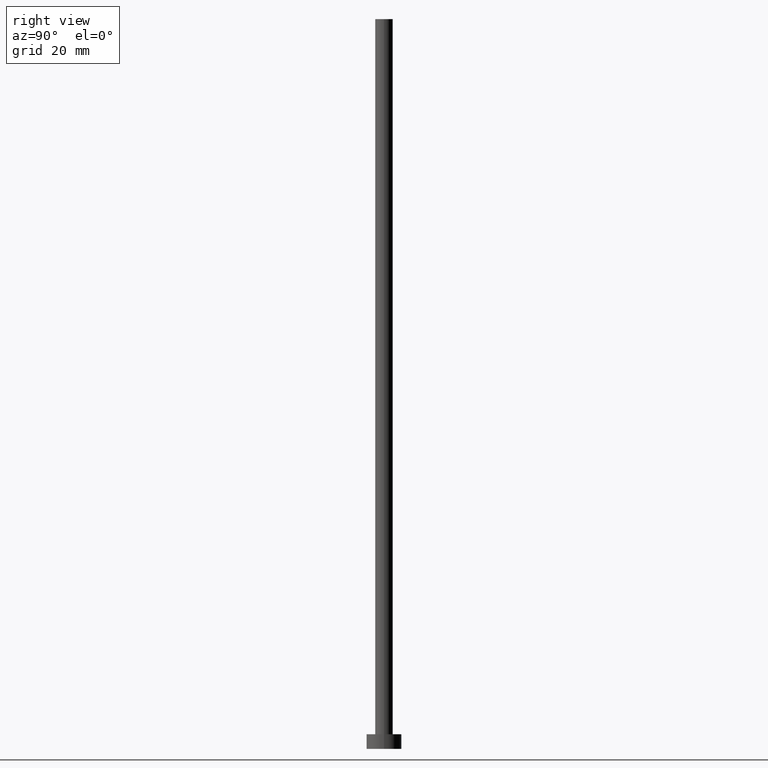
[diagram: clean part render]
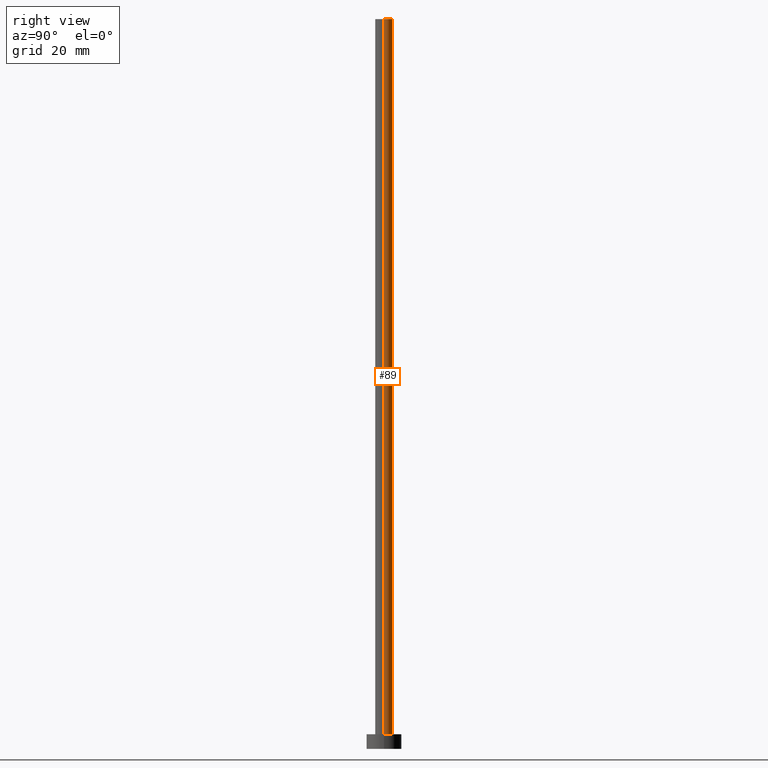
[diagram: same view with one face highlighted and labeled with its STEP entity id]
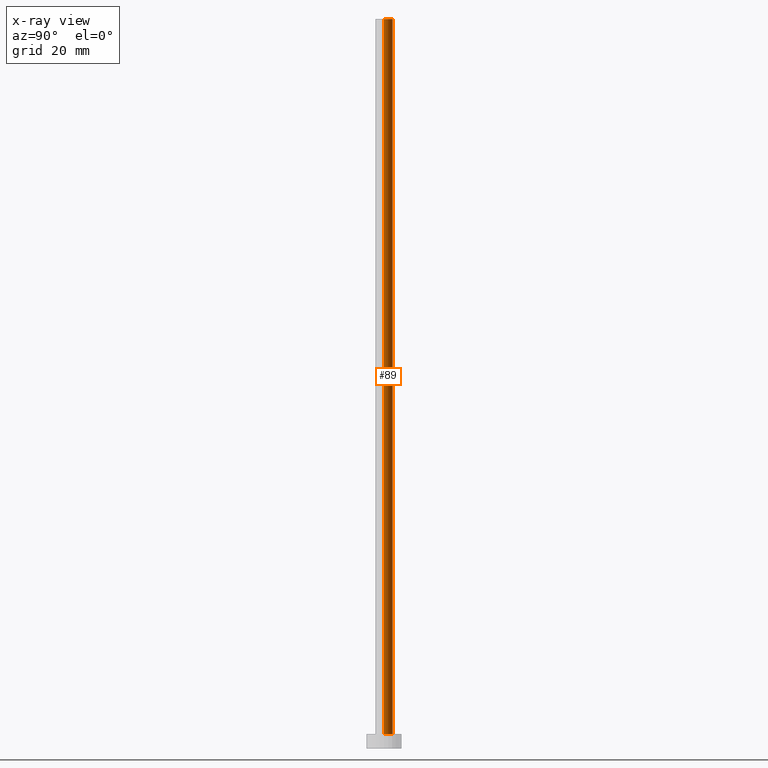
[diagram: x-ray of the same camera — body ghosted, the highlighted face saturated]
A machine part, right view. The second image highlights one B-rep face of the part: STEP entity #89.
The next image is the same camera in x-ray: the body ghosted, the highlighted face saturated — about 0% of this face is hidden behind the body in this view.
In plain terms, the highlighted cylindrical surface (edge-blend (fillet) strip) has radius 3 mm, axis along (-0, -0, -1).
Its self-contained STEP definition (entity closure, byte-faithful):
#14 = EDGE_CURVE ( 'NONE', #214, #237, #124, .T. ) ;
#22 = ORIENTED_EDGE ( 'NONE', *, *, #213, .F. ) ;
#24 = ORIENTED_EDGE ( 'NONE', *, *, #14, .F. ) ;
#44 = VECTOR ( 'NONE', #109, 1000.000000000000000 ) ;
#47 = FACE_OUTER_BOUND ( 'NONE', #157, .T. ) ;
#63 = DIRECTION ( 'NONE',  ( 0.000000000000000000, 0.000000000000000000, 1.000000000000000000 ) ) ;
#65 = CARTESIAN_POINT ( 'NONE',  ( 3.000000000000000444, 3.673940397442060361E-16, 250.0000000000000000 ) ) ;
#66 = AXIS2_PLACEMENT_3D ( 'NONE', #170, #85, #225 ) ;
#78 = VECTOR ( 'NONE', #248, 1000.000000000000000 ) ;
#85 = DIRECTION ( 'NONE',  ( -0.000000000000000000, -0.000000000000000000, -1.000000000000000000 ) ) ;
#89 = ADVANCED_FACE ( 'NONE', ( #47 ), #250, .T. ) ;
#93 = CIRCLE ( 'NONE', #218, 3.000000000000000444 ) ;
#108 = LINE ( 'NONE', #65, #44 ) ;
#109 = DIRECTION ( 'NONE',  ( -0.000000000000000000, -0.000000000000000000, -1.000000000000000000 ) ) ;
#122 = DIRECTION ( 'NONE',  ( 1.000000000000000000, 0.000000000000000000, 0.000000000000000000 ) ) ;
#124 = LINE ( 'NONE', #169, #78 ) ;
#139 = CARTESIAN_POINT ( 'NONE',  ( 0.000000000000000000, 0.000000000000000000, 5.000000000000000000 ) ) ;
#142 = AXIS2_PLACEMENT_3D ( 'NONE', #139, #217, #122 ) ;
#143 = CARTESIAN_POINT ( 'NONE',  ( 0.000000000000000000, 0.000000000000000000, 250.0000000000000000 ) ) ;
#157 = EDGE_LOOP ( 'NONE', ( #22, #233, #238, #24 ) ) ;
#159 = VERTEX_POINT ( 'NONE', #167 ) ;
#167 = CARTESIAN_POINT ( 'NONE',  ( 3.000000000000000444, 3.673940397442060361E-16, 250.0000000000000000 ) ) ;
#169 = CARTESIAN_POINT ( 'NONE',  ( -3.000000000000000444, 0.000000000000000000, 250.0000000000000000 ) ) ;
#170 = CARTESIAN_POINT ( 'NONE',  ( 0.000000000000000000, 0.000000000000000000, 250.0000000000000000 ) ) ;
#187 = CARTESIAN_POINT ( 'NONE',  ( 3.000000000000000444, 3.673940397442060361E-16, 5.000000000000000000 ) ) ;
#189 = CARTESIAN_POINT ( 'NONE',  ( -3.000000000000000444, 0.000000000000000000, 250.0000000000000000 ) ) ;
#191 = CIRCLE ( 'NONE', #142, 3.000000000000000444 ) ;
#203 = EDGE_CURVE ( 'NONE', #159, #231, #108, .T. ) ;
#213 = EDGE_CURVE ( 'NONE', #159, #214, #93, .T. ) ;
#214 = VERTEX_POINT ( 'NONE', #189 ) ;
#217 = DIRECTION ( 'NONE',  ( 0.000000000000000000, 0.000000000000000000, 1.000000000000000000 ) ) ;
#218 = AXIS2_PLACEMENT_3D ( 'NONE', #143, #63, #219 ) ;
#219 = DIRECTION ( 'NONE',  ( 1.000000000000000000, 0.000000000000000000, 0.000000000000000000 ) ) ;
#225 = DIRECTION ( 'NONE',  ( -1.000000000000000000, 0.000000000000000000, 0.000000000000000000 ) ) ;
#228 = CARTESIAN_POINT ( 'NONE',  ( -3.000000000000000444, 0.000000000000000000, 5.000000000000000000 ) ) ;
#231 = VERTEX_POINT ( 'NONE', #187 ) ;
#233 = ORIENTED_EDGE ( 'NONE', *, *, #203, .T. ) ;
#236 = EDGE_CURVE ( 'NONE', #231, #237, #191, .T. ) ;
#237 = VERTEX_POINT ( 'NONE', #228 ) ;
#238 = ORIENTED_EDGE ( 'NONE', *, *, #236, .T. ) ;
#248 = DIRECTION ( 'NONE',  ( -0.000000000000000000, -0.000000000000000000, -1.000000000000000000 ) ) ;
#250 = CYLINDRICAL_SURFACE ( 'NONE', #66, 3.000000000000000444 ) ;